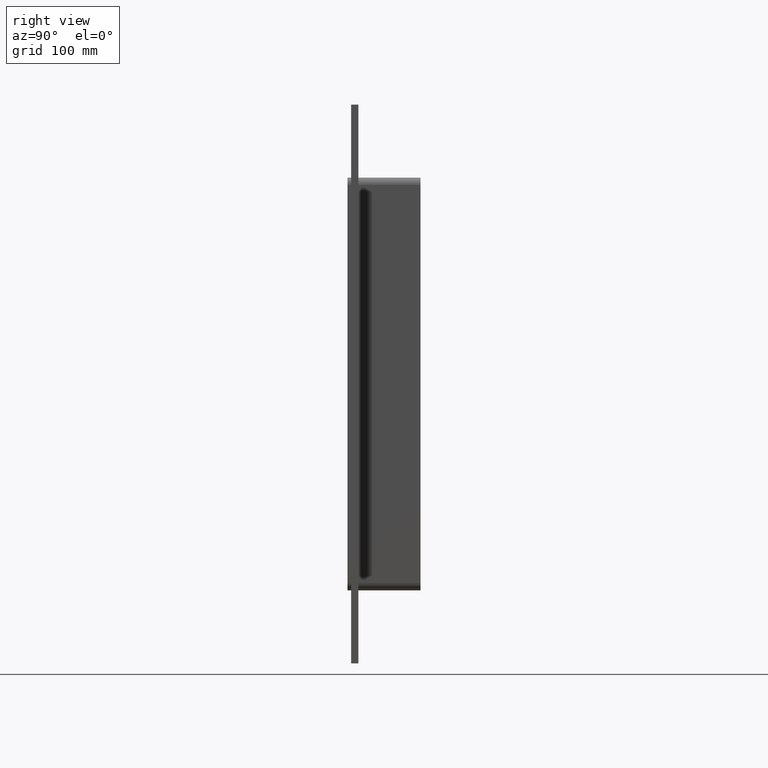
[diagram: clean part render]
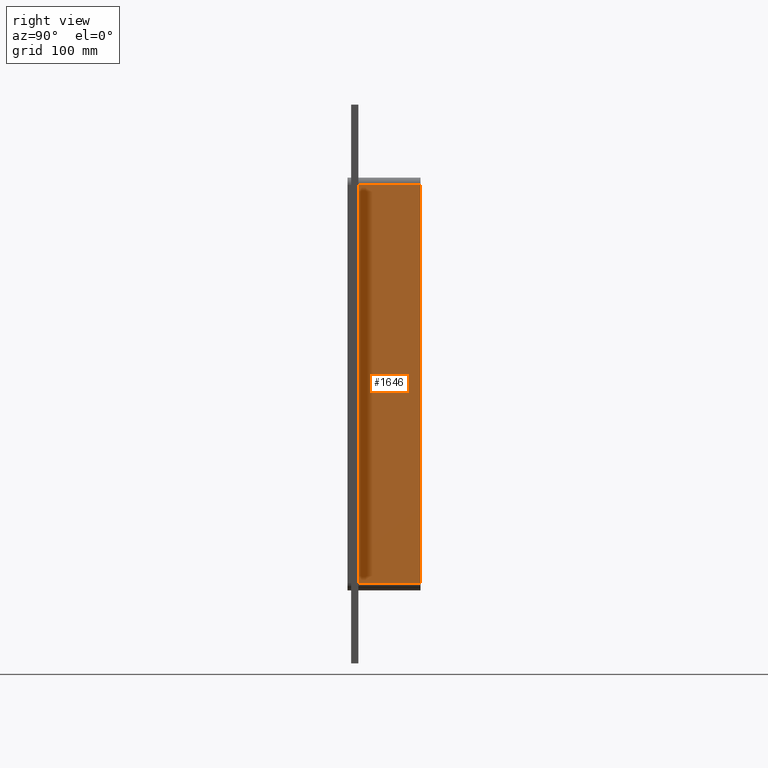
[diagram: same view with one face highlighted and labeled with its STEP entity id]
A machine part, right view. The second image highlights one B-rep face of the part: STEP entity #1646.
In plain terms, the highlighted planar face has unit normal (1, 0, 0).
Its self-contained STEP definition (entity closure, byte-faithful):
#896=CARTESIAN_POINT('',(131.5,57.0,-163.5));
#897=VERTEX_POINT('',#896);
#947=CARTESIAN_POINT('',(131.5,57.0,163.5));
#948=VERTEX_POINT('',#947);
#956=CARTESIAN_POINT('',(131.5,57.0,163.5));
#957=DIRECTION('',(0.0,0.0,-1.0));
#958=VECTOR('',#957,327.0);
#959=LINE('',#956,#958);
#960=EDGE_CURVE('',#948,#897,#959,.T.);
#1275=CARTESIAN_POINT('',(131.5,6.000000000000001,-163.5));
#1276=VERTEX_POINT('',#1275);
#1284=CARTESIAN_POINT('',(131.5,6.000000000000001,163.5));
#1285=VERTEX_POINT('',#1284);
#1286=CARTESIAN_POINT('',(131.5,6.000000000000001,163.5));
#1287=DIRECTION('',(0.0,0.0,-1.0));
#1288=VECTOR('',#1287,327.0);
#1289=LINE('',#1286,#1288);
#1290=EDGE_CURVE('',#1285,#1276,#1289,.T.);
#1590=CARTESIAN_POINT('',(131.5,6.000000000000001,163.5));
#1591=DIRECTION('',(0.0,1.0,0.0));
#1592=VECTOR('',#1591,51.0);
#1593=LINE('',#1590,#1592);
#1594=EDGE_CURVE('',#1285,#948,#1593,.T.);
#1630=CARTESIAN_POINT('',(131.5,0.0,169.50000000000003));
#1631=DIRECTION('',(1.0,0.0,0.0));
#1632=DIRECTION('',(0.0,0.0,-1.0));
#1633=AXIS2_PLACEMENT_3D('',#1630,#1631,#1632);
#1634=PLANE('',#1633);
#1635=ORIENTED_EDGE('',*,*,#1290,.T.);
#1636=CARTESIAN_POINT('',(131.5,57.0,-163.5));
#1637=DIRECTION('',(0.0,-1.0,0.0));
#1638=VECTOR('',#1637,51.0);
#1639=LINE('',#1636,#1638);
#1640=EDGE_CURVE('',#897,#1276,#1639,.T.);
#1641=ORIENTED_EDGE('',*,*,#1640,.F.);
#1642=ORIENTED_EDGE('',*,*,#960,.F.);
#1643=ORIENTED_EDGE('',*,*,#1594,.F.);
#1644=EDGE_LOOP('',(#1635,#1641,#1642,#1643));
#1645=FACE_OUTER_BOUND('',#1644,.T.);
#1646=ADVANCED_FACE('',(#1645),#1634,.T.);